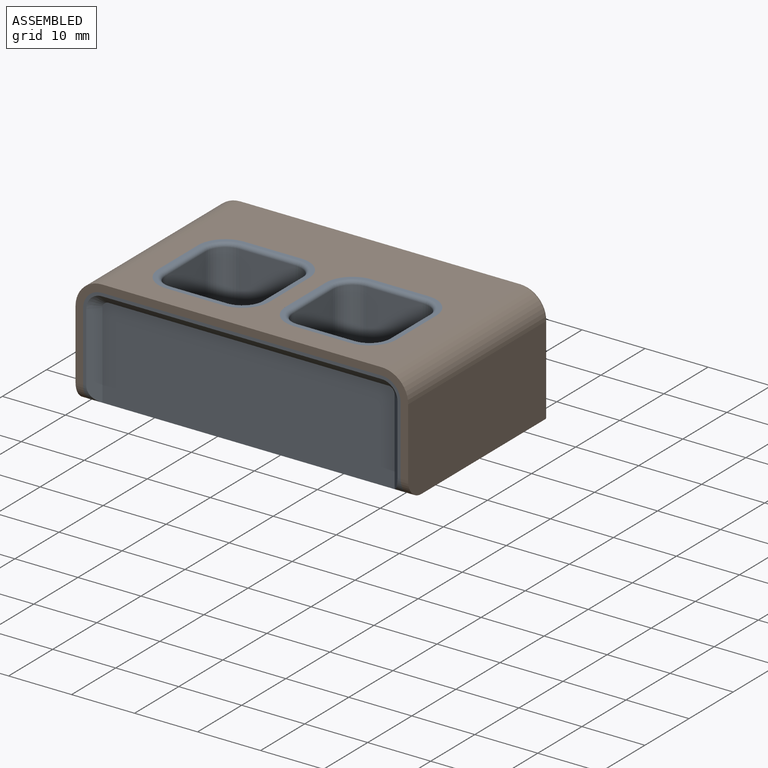
[diagram: assembled view]
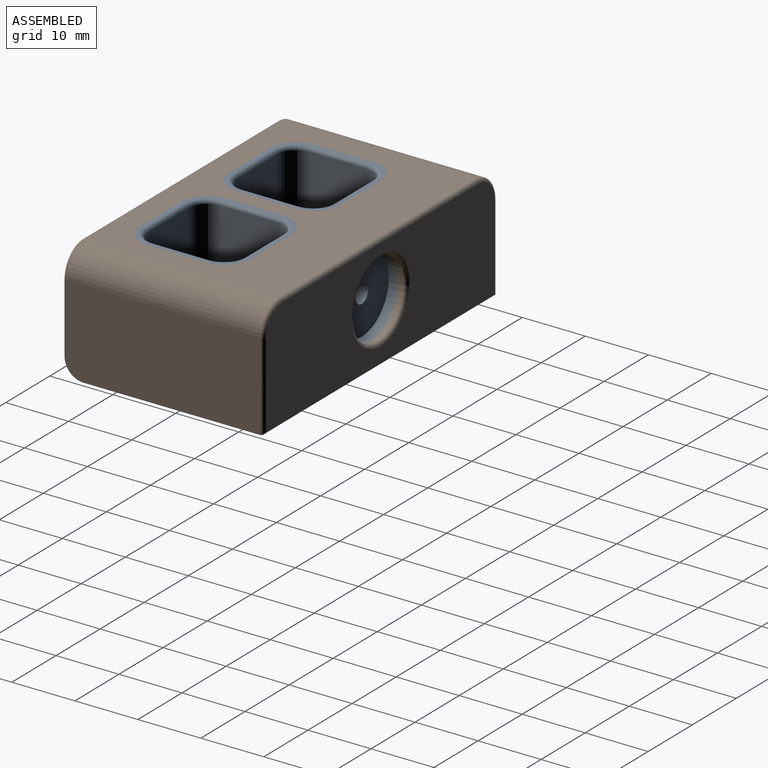
[diagram: assembled view, second angle]
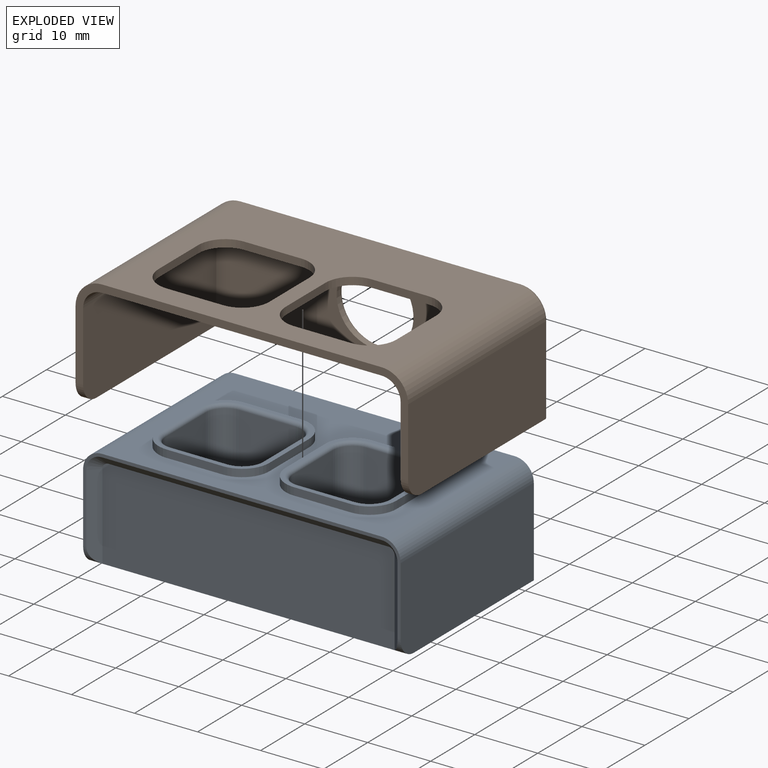
[diagram: exploded view]
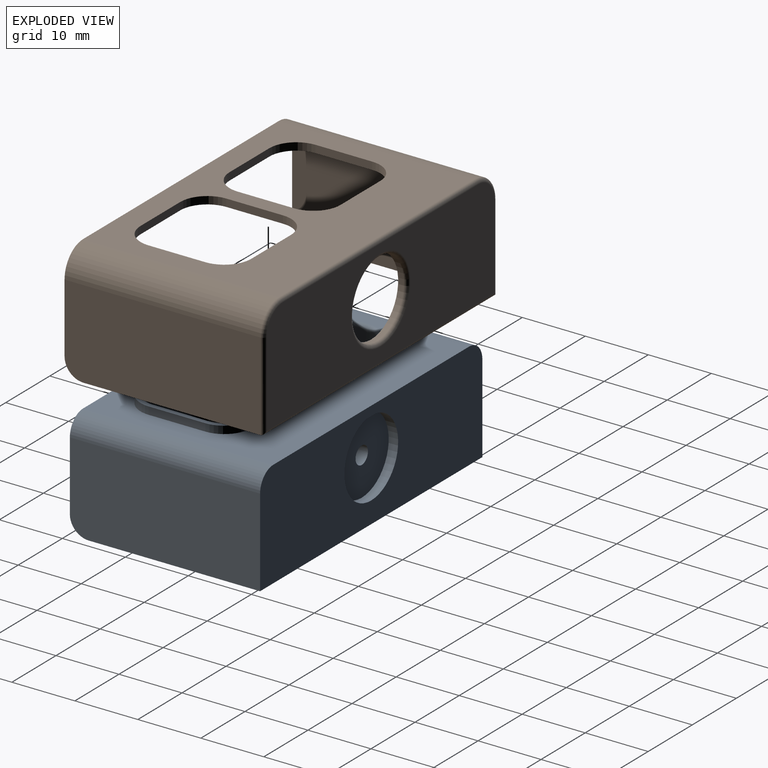
[diagram: exploded view, second angle]
ASSEMBLY  parts=2 mates=2
PART A: 84 faces, bbox 50.4x30.2x18.2 mm
  f0: cylinder r=6.1mm len=12.2mm, axis (0,1,0), area 54.2mm2, adj f1,f6,f71
  f1: plane 12.2x12.1mm, normal (0,1,0), area 110.6mm2, adj f0,f17,f71
  f2: plane 44.4x30.2mm, normal (0,0,1), area 753.1mm2, adj f3,f6,f8,f9,f19,f20,f21,f22
  f3: plane 50.4x14mm, normal (0,-1,0), area 37.5mm2, adj f2,f4,f5,f8,f9,f11,f12,f13
  f4: plane 30.2x14mm, normal (-1,0,0), area 420.9mm2, adj f3,f6,f7,f9,f16
  f5: plane 30.2x14mm, normal (1,0,0), area 420.9mm2, adj f3,f6,f7,f8,f16
  f6: plane 50.4x17mm, normal (0,1,0), area 736.2mm2, adj f0,f2,f4,f5,f7,f8,f9,f71
  f7: plane 50.4x27.2mm, normal (0,0,-1), area 1370.9mm2, adj f4,f5,f6,f16
  f8: cylinder r=3mm len=30.2mm, axis (0,1,0), area 142.3mm2, adj f2,f3,f5,f6
  f9: cylinder r=3mm len=30.2mm, axis (0,-1,0), area 142.3mm2, adj f2,f3,f4,f6
  f10: plane 46.4x14.6mm, normal (0,-1,0), area 676.9mm2, adj f11,f12,f13,f14,f15,f16
  f11: plane 13.6x1.5mm, normal (0.71,-0.71,0), area 27.2mm2, adj f3,f10,f12,f16
  f12: cone r=1mm half-angle=45deg, axis (0,-1,0), area 5.8mm2, adj f3,f10,f11,f13
  f13: plane 44.4x1.5mm, normal (0,-0.71,-0.71), area 94.2mm2, adj f3,f10,f12,f14
  f14: cone r=1mm half-angle=45deg, axis (0,-1,0), area 5.8mm2, adj f3,f10,f13,f15
  f15: plane 13.6x1.5mm, normal (-0.71,-0.71,0), area 27.2mm2, adj f3,f10,f14,f16
  f16: cylinder r=3mm len=50.4mm, axis (-1,0,0), area 85.6mm2, adj f3,f4,f5,f7,f10,f11,f15
  f17: cylinder r=1.4mm len=4mm, axis (0,1,0), area 35.2mm2, adj f1,f18
  f18: plane 2.8x2.8mm, normal (0,1,0), area 6.2mm2, adj f17
  f19: plane 9x1.2mm, normal (1,0,0), area 10.8mm2, adj f2,f20,f26,f27
  f20: cylinder r=4.3mm len=4.3mm, axis (0,0,-1), area 8.1mm2, adj f2,f19,f21,f27
  f21: plane 9x1.2mm, normal (0,1,0), area 10.8mm2, adj f2,f20,f22,f27
  f22: cylinder r=4.3mm len=4.3mm, axis (0,0,-1), area 8.1mm2, adj f2,f21,f23,f27
  f23: plane 9x1.2mm, normal (-1,0,0), area 10.8mm2, adj f2,f22,f24,f27
  f24: cylinder r=4.3mm len=4.3mm, axis (0,0,-1), area 8.1mm2, adj f2,f23,f25,f27
  f25: plane 9x1.2mm, normal (0,-1,0), area 10.8mm2, adj f2,f24,f26,f27
  f26: cylinder r=4.3mm len=4.3mm, axis (0,0,-1), area 8.1mm2, adj f2,f19,f25,f27
  f27: plane 17.6x17.6mm, normal (0,0,1), area 36.7mm2, adj f19,f20,f21,f22,f23,f24,f25,f26
  f28: plane 15.2x15.2mm, normal (0,0,1), area 222.8mm2, adj f29,f30,f31,f32,f33,f34,f35,f36
  f29: cylinder r=3.1mm len=10.6mm, axis (0,0,1), area 51.6mm2, adj f28,f30,f36,f65
  f30: plane 10.6x9mm, normal (-1,0,0), area 95.4mm2, adj f28,f29,f31,f67
  f31: cylinder r=3.1mm len=10.6mm, axis (0,0,1), area 51.6mm2, adj f28,f30,f32,f69
  f32: plane 10.6x9mm, normal (0,1,0), area 95.4mm2, adj f28,f31,f33,f70
  f33: cylinder r=3.1mm len=10.6mm, axis (0,0,1), area 51.6mm2, adj f28,f32,f34,f68
  f34: plane 10.6x9mm, normal (1,0,0), area 95.4mm2, adj f28,f33,f35,f66
  f35: cylinder r=3.1mm len=10.6mm, axis (0,0,1), area 51.6mm2, adj f28,f34,f36,f64
  f36: plane 10.6x9mm, normal (0,-1,0), area 95.4mm2, adj f28,f29,f35,f63
  f37: cylinder r=4.3mm len=4.3mm, axis (0,0,-1), area 8.1mm2, adj f2,f38,f44,f45
  f38: plane 9x1.2mm, normal (0,-1,0), area 10.8mm2, adj f2,f37,f39,f45
  f39: cylinder r=4.3mm len=4.3mm, axis (0,0,-1), area 8.1mm2, adj f2,f38,f40,f45
  f40: plane 9x1.2mm, normal (1,0,0), area 10.8mm2, adj f2,f39,f41,f45
  f41: cylinder r=4.3mm len=4.3mm, axis (0,0,-1), area 8.1mm2, adj f2,f40,f42,f45
  f42: plane 9x1.2mm, normal (0,1,0), area 10.8mm2, adj f2,f41,f43,f45
  f43: cylinder r=4.3mm len=4.3mm, axis (0,0,-1), area 8.1mm2, adj f2,f42,f44,f45
  f44: plane 9x1.2mm, normal (-1,0,0), area 10.8mm2, adj f2,f37,f43,f45
  f45: plane 17.6x17.6mm, normal (0,0,1), area 36.7mm2, adj f37,f38,f39,f40,f41,f42,f43,f44
  f46: plane 15.2x15.2mm, normal (0,0,1), area 222.8mm2, adj f47,f48,f49,f50,f51,f52,f53,f54
  f47: cylinder r=3.1mm len=10.6mm, axis (0,0,1), area 51.6mm2, adj f46,f48,f54,f57
  f48: plane 10.6x9mm, normal (0,-1,0), area 95.4mm2, adj f46,f47,f49,f55
  f49: cylinder r=3.1mm len=10.6mm, axis (0,0,1), area 51.6mm2, adj f46,f48,f50,f56
  f50: plane 10.6x9mm, normal (1,0,0), area 95.4mm2, adj f46,f49,f51,f58
  f51: cylinder r=3.1mm len=10.6mm, axis (0,0,1), area 51.6mm2, adj f46,f50,f52,f60
  f52: plane 10.6x9mm, normal (0,1,0), area 95.4mm2, adj f46,f51,f53,f62
  f53: cylinder r=3.1mm len=10.6mm, axis (0,0,1), area 51.6mm2, adj f46,f52,f54,f61
  f54: plane 10.6x9mm, normal (-1,0,0), area 95.4mm2, adj f46,f47,f53,f59
  f55: cylinder r=0.6mm len=9mm, axis (1,0,0), area 8.5mm2, adj f45,f48,f56,f57
  f56: torus R=3.7mm, axis (0,0,1), area 4.9mm2, adj f45,f49,f55,f58
  f57: torus R=3.7mm, axis (0,0,1), area 4.9mm2, adj f45,f47,f55,f59
  f58: cylinder r=0.6mm len=9mm, axis (0,1,0), area 8.5mm2, adj f45,f50,f56,f60
  f59: cylinder r=0.6mm len=9mm, axis (0,-1,0), area 8.5mm2, adj f45,f54,f57,f61
  f60: torus R=3.7mm, axis (0,0,1), area 4.9mm2, adj f45,f51,f58,f62
  f61: torus R=3.7mm, axis (0,0,1), area 4.9mm2, adj f45,f53,f59,f62
  f62: cylinder r=0.6mm len=9mm, axis (-1,0,0), area 8.5mm2, adj f45,f52,f60,f61
  f63: cylinder r=0.6mm len=9mm, axis (1,0,0), area 8.5mm2, adj f27,f36,f64,f65
  f64: torus R=3.7mm, axis (0,0,1), area 4.9mm2, adj f27,f35,f63,f66
  f65: torus R=3.7mm, axis (0,0,1), area 4.9mm2, adj f27,f29,f63,f67
  f66: cylinder r=0.6mm len=9mm, axis (0,1,0), area 8.5mm2, adj f27,f34,f64,f68
  f67: cylinder r=0.6mm len=9mm, axis (0,-1,0), area 8.5mm2, adj f27,f30,f65,f69
  f68: torus R=3.7mm, axis (0,0,1), area 4.9mm2, adj f27,f33,f66,f70
  f69: torus R=3.7mm, axis (0,0,1), area 4.9mm2, adj f27,f31,f67,f70
  f70: cylinder r=0.6mm len=9mm, axis (-1,0,0), area 8.5mm2, adj f27,f32,f68,f69
  f71: plane 2.2x1.5mm, normal (0,0,-1), area 3.3mm2, adj f0,f1,f6
  f72: plane 13x6mm, normal (0,0,1), area 78mm2, adj f73,f74,f75,f76
  f73: plane 13.5x6mm, normal (1,0,0), area 81mm2, adj f72,f74,f76,f77
  f74: plane 13.5x13mm, normal (0,-1,0), area 175.5mm2, adj f72,f73,f75,f77
  f75: plane 13.5x6mm, normal (-1,0,0), area 81mm2, adj f72,f74,f76,f77
  f76: plane 13.5x13mm, normal (0,1,0), area 175.5mm2, adj f72,f73,f75,f77
  f77: plane 13x6mm, normal (0,0,-1), area 78mm2, adj f73,f74,f75,f76
  f78: plane 13x6mm, normal (0,0,1), area 78mm2, adj f79,f80,f81,f82
  f79: plane 13.5x13mm, normal (0,-1,0), area 175.5mm2, adj f78,f80,f82,f83
  f80: plane 13.5x6mm, normal (-1,0,0), area 81mm2, adj f78,f79,f81,f83
  f81: plane 13.5x13mm, normal (0,1,0), area 175.5mm2, adj f78,f80,f82,f83
  f82: plane 13.5x6mm, normal (1,0,0), area 81mm2, adj f78,f79,f81,f83
  f83: plane 13x6mm, normal (0,0,-1), area 78mm2, adj f79,f80,f81,f82
PART B: 40 faces, bbox 53.5x31.7x18.5 mm
  f0: plane 52.8x15.2mm, normal (0,-1,0), area 93.3mm2, adj f18,f19,f20,f22,f23,f24,f25,f27
  f1: plane 52.8x28.1mm, normal (0,0,-1), area 112.8mm2, adj f19,f20,f24,f25,f26,f31,f32,f36
  f2: plane 9x1.2mm, normal (-1,0,0), area 10.8mm2, adj f3,f9,f18,f27
  f3: cylinder r=4.3mm len=4.3mm, axis (0,0,1), area 8.1mm2, adj f2,f4,f18,f27
  f4: plane 9x1.2mm, normal (0,-1,0), area 10.8mm2, adj f3,f5,f18,f27
  f5: cylinder r=4.3mm len=4.3mm, axis (0,0,1), area 8.1mm2, adj f4,f6,f18,f27
  f6: plane 9x1.2mm, normal (1,0,0), area 10.8mm2, adj f5,f7,f18,f27
  f7: cylinder r=4.3mm len=4.3mm, axis (0,0,1), area 8.1mm2, adj f6,f8,f18,f27
  f8: plane 9x1.2mm, normal (0,1,0), area 10.8mm2, adj f7,f9,f18,f27
  f9: cylinder r=4.3mm len=4.3mm, axis (0,0,1), area 8.1mm2, adj f2,f8,f18,f27
  f10: plane 9x1.2mm, normal (0,-1,0), area 10.8mm2, adj f11,f17,f18,f27
  f11: cylinder r=4.3mm len=4.3mm, axis (0,0,1), area 8.1mm2, adj f10,f12,f18,f27
  f12: plane 9x1.2mm, normal (1,0,0), area 10.8mm2, adj f11,f13,f18,f27
  f13: cylinder r=4.3mm len=4.3mm, axis (0,0,1), area 8.1mm2, adj f12,f14,f18,f27
  f14: plane 9x1.2mm, normal (0,1,0), area 10.8mm2, adj f13,f15,f18,f27
  f15: cylinder r=4.3mm len=4.3mm, axis (0,0,1), area 8.1mm2, adj f14,f16,f18,f27
  f16: plane 9x1.2mm, normal (-1,0,0), area 10.8mm2, adj f15,f17,f18,f27
  f17: cylinder r=4.3mm len=4.3mm, axis (0,0,1), area 8.1mm2, adj f10,f16,f18,f27
  f18: plane 44.4x31.1mm, normal (0,0,1), area 793.1mm2, adj f0,f2,f3,f4,f5,f6,f7,f8
  f19: plane 31.1x14mm, normal (-1,0,0), area 433.5mm2, adj f0,f1,f23,f32,f34
  f20: plane 31.1x14mm, normal (1,0,0), area 433.5mm2, adj f0,f1,f22,f31,f38
  f21: plane 51.6x17mm, normal (0,1,0), area 730.6mm2, adj f33,f34,f35,f36,f37,f38,f39
  f22: cylinder r=4.2mm len=31.1mm, axis (0,1,0), area 205.2mm2, adj f0,f18,f20,f39
  f23: cylinder r=4.2mm len=31.1mm, axis (0,-1,0), area 205.2mm2, adj f0,f18,f19,f35
  f24: plane 30.2x14mm, normal (1,0,0), area 420.9mm2, adj f0,f1,f26,f29,f32
  f25: plane 30.2x14mm, normal (-1,0,0), area 420.9mm2, adj f0,f1,f26,f28,f31
  f26: plane 50.4x17mm, normal (0,-1,0), area 736mm2, adj f1,f24,f25,f27,f28,f29,f30
  f27: plane 44.4x30.2mm, normal (0,0,-1), area 753.1mm2, adj f0,f2,f3,f4,f5,f6,f7,f8
  f28: cylinder r=3mm len=30.2mm, axis (0,-1,0), area 142.3mm2, adj f0,f25,f26,f27
  f29: cylinder r=3mm len=30.2mm, axis (0,-1,0), area 142.3mm2, adj f0,f24,f26,f27
  f30: cylinder r=6.1mm len=12.2mm, axis (0,1,0), area 34.5mm2, adj f26,f33
  f31: cylinder r=3mm len=3mm, axis (-1,0,0), area 5.7mm2, adj f0,f1,f20,f25
  f32: cylinder r=3mm len=3mm, axis (-1,0,0), area 5.7mm2, adj f0,f1,f19,f24
  f33: torus R=6.7mm, axis (0,-1,0), area 37.4mm2, adj f21,f30
  f34: cylinder r=0.6mm len=14mm, axis (0,0,1), area 13mm2, adj f19,f21,f35,f36
  f35: torus R=3.6mm, axis (0,-1,0), area 5.9mm2, adj f21,f23,f34,f37
  f36: cylinder r=0.6mm len=52.8mm, axis (1,0,0), area 49.4mm2, adj f1,f21,f34,f38
  f37: cylinder r=0.6mm len=44.4mm, axis (-1,0,0), area 41.8mm2, adj f18,f21,f35,f39
  f38: cylinder r=0.6mm len=14mm, axis (0,0,-1), area 13mm2, adj f20,f21,f36,f39
  f39: torus R=3.6mm, axis (0,-1,0), area 5.9mm2, adj f21,f22,f37,f38
PLACE A t=(-4.94,-3.52,10.57)mm
PLACE B t=(-4.94,-2.77,11.77)mm
MATE planar A.f3 <-> B.f0  axis (0,-1,0) through (-4.94,-18.62,7.79)mm
MATE planar A.f2 <-> B.f27  axis (0,0,1) through (-23.84,-10.52,10.57)mm
